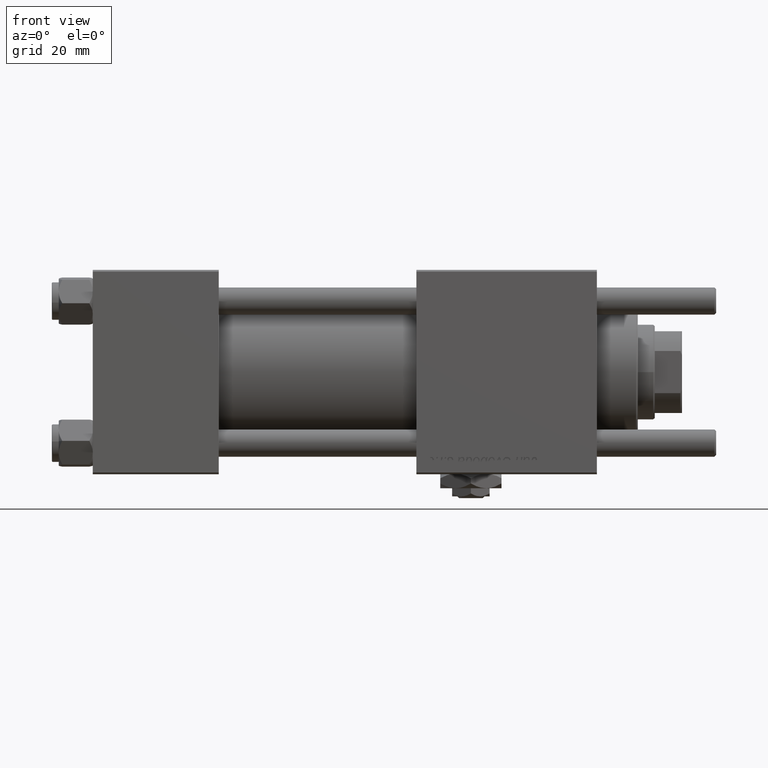
[diagram: clean part render]
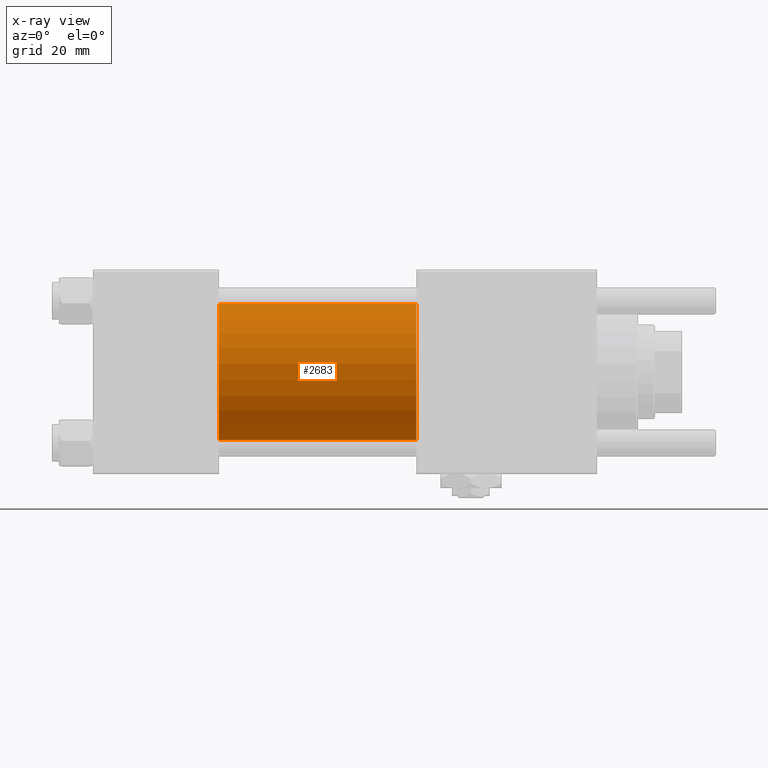
[diagram: x-ray — body ghosted, one internal face saturated and labeled with its STEP entity id]
A machine part, front view, then the same camera in x-ray: the body is ghosted and one INTERNAL B-rep face — a face not visible from any outside direction — is saturated and labeled: STEP entity #2683.
In plain terms, the highlighted cylindrical surface (partial cylindrical patch) has radius 20 mm, axis along (-1, -0, -0).
Its self-contained STEP definition (entity closure, byte-faithful):
#1030 = DIRECTION ( 'NONE',  ( -1.000000000000000000, -0.000000000000000000, -0.000000000000000000 ) ) ;
#1303 = CARTESIAN_POINT ( 'NONE',  ( 37.00000000000000000, -2.602085213965210642E-15, 0.000000000000000000 ) ) ;
#2683 = ADVANCED_FACE ( 'NONE', ( #9059 ), #9357, .F. ) ;
#3621 = CARTESIAN_POINT ( 'NONE',  ( 95.00000000000000000, -2.602085213965210642E-15, 20.00000000000000000 ) ) ;
#4539 = EDGE_CURVE ( 'NONE', #6090, #26298, #13125, .T. ) ;
#4607 = ORIENTED_EDGE ( 'NONE', *, *, #33077, .T. ) ;
#6090 = VERTEX_POINT ( 'NONE', #7498 ) ;
#7498 = CARTESIAN_POINT ( 'NONE',  ( 95.00000000000000000, -2.602085213965210642E-15, 20.00000000000000000 ) ) ;
#8546 = AXIS2_PLACEMENT_3D ( 'NONE', #45555, #27759, #9938 ) ;
#9059 = FACE_OUTER_BOUND ( 'NONE', #10830, .T. ) ;
#9357 = CYLINDRICAL_SURFACE ( 'NONE', #8546, 20.00000000000000000 ) ;
#9938 = DIRECTION ( 'NONE',  ( 0.000000000000000000, 0.000000000000000000, 1.000000000000000000 ) ) ;
#10830 = EDGE_LOOP ( 'NONE', ( #46844, #4607, #20297, #43248 ) ) ;
#12835 = VERTEX_POINT ( 'NONE', #27131 ) ;
#13125 = LINE ( 'NONE', #3621, #29441 ) ;
#13410 = EDGE_CURVE ( 'NONE', #6090, #12835, #55134, .T. ) ;
#15202 = CARTESIAN_POINT ( 'NONE',  ( 37.00000000000000000, -2.602085213965210642E-15, 20.00000000000000000 ) ) ;
#18669 = CIRCLE ( 'NONE', #51827, 20.00000000000000000 ) ;
#19439 = DIRECTION ( 'NONE',  ( 0.000000000000000000, 0.000000000000000000, -1.000000000000000000 ) ) ;
#20297 = ORIENTED_EDGE ( 'NONE', *, *, #32166, .F. ) ;
#22033 = DIRECTION ( 'NONE',  ( -1.000000000000000000, -0.000000000000000000, -0.000000000000000000 ) ) ;
#22544 = CARTESIAN_POINT ( 'NONE',  ( 95.00000000000000000, -2.602085213965210642E-15, 0.000000000000000000 ) ) ;
#25305 = VECTOR ( 'NONE', #1030, 1000.000000000000000 ) ;
#26298 = VERTEX_POINT ( 'NONE', #15202 ) ;
#27131 = CARTESIAN_POINT ( 'NONE',  ( 95.00000000000000000, -1.527916156705046464E-16, -20.00000000000000000 ) ) ;
#27759 = DIRECTION ( 'NONE',  ( -1.000000000000000000, -0.000000000000000000, -0.000000000000000000 ) ) ;
#28939 = DIRECTION ( 'NONE',  ( 1.000000000000000000, 0.000000000000000000, 0.000000000000000000 ) ) ;
#29441 = VECTOR ( 'NONE', #22033, 1000.000000000000000 ) ;
#29570 = AXIS2_PLACEMENT_3D ( 'NONE', #22544, #31455, #50426 ) ;
#31455 = DIRECTION ( 'NONE',  ( 1.000000000000000000, 0.000000000000000000, 0.000000000000000000 ) ) ;
#32166 = EDGE_CURVE ( 'NONE', #26298, #56964, #18669, .T. ) ;
#33077 = EDGE_CURVE ( 'NONE', #12835, #56964, #46166, .T. ) ;
#41134 = CARTESIAN_POINT ( 'NONE',  ( 95.00000000000000000, -1.527916156705046464E-16, -20.00000000000000000 ) ) ;
#43248 = ORIENTED_EDGE ( 'NONE', *, *, #4539, .F. ) ;
#45555 = CARTESIAN_POINT ( 'NONE',  ( 95.00000000000000000, -2.602085213965210642E-15, 0.000000000000000000 ) ) ;
#46166 = LINE ( 'NONE', #41134, #25305 ) ;
#46844 = ORIENTED_EDGE ( 'NONE', *, *, #13410, .T. ) ;
#50426 = DIRECTION ( 'NONE',  ( 0.000000000000000000, 0.000000000000000000, -1.000000000000000000 ) ) ;
#51827 = AXIS2_PLACEMENT_3D ( 'NONE', #1303, #28939, #19439 ) ;
#55134 = CIRCLE ( 'NONE', #29570, 20.00000000000000000 ) ;
#56964 = VERTEX_POINT ( 'NONE', #58293 ) ;
#58293 = CARTESIAN_POINT ( 'NONE',  ( 37.00000000000000000, -1.527916156705046464E-16, -20.00000000000000000 ) ) ;